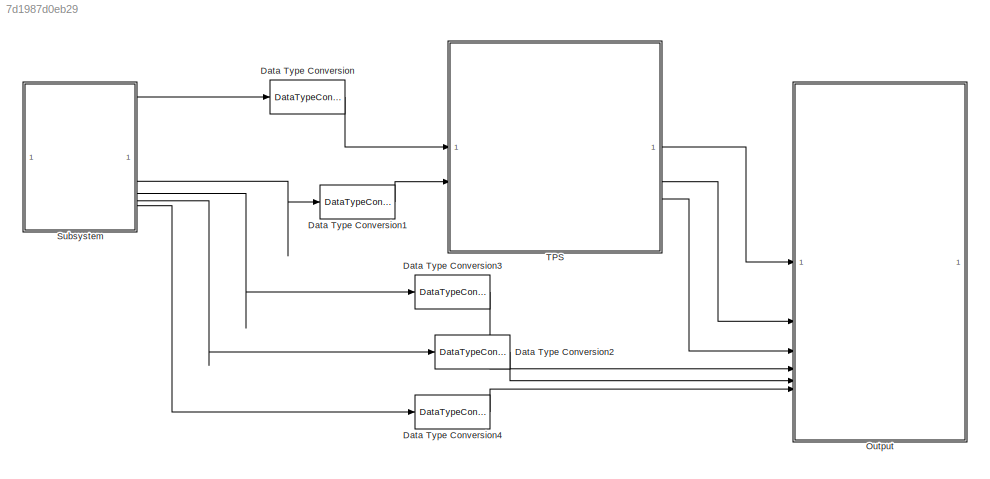
MODEL slx_7d1987d0eb29
KIND model
CONFIG AbsTol = auto
CONFIG EnableMultiTasking = off
CONFIG FixedStep = auto
CONFIG MaxStep = auto
CONFIG MinStep = auto
CONFIG RelTol = 1e-3
CONFIG SampleTimeConstraint = Unconstrained
CONFIG SolverName = VariableStepAuto
CONFIG StartTime = 0.0
CONFIG StopTime = 2
BLOCK [DataTypeConversion] Data Type Conversion
  OutDataTypeStr = single
  RndMeth = Floor
  SaturateOnIntegerOverflow = off
BLOCK [DataTypeConversion] Data Type Conversion1
  OutDataTypeStr = single
  RndMeth = Floor
  SaturateOnIntegerOverflow = off
BLOCK [DataTypeConversion] Data Type Conversion2
  OutDataTypeStr = boolean
  RndMeth = Floor
  SaturateOnIntegerOverflow = off
BLOCK [DataTypeConversion] Data Type Conversion3
  OutDataTypeStr = boolean
  RndMeth = Floor
  SaturateOnIntegerOverflow = off
BLOCK [DataTypeConversion] Data Type Conversion4
  OutDataTypeStr = boolean
  RndMeth = Floor
  SaturateOnIntegerOverflow = off
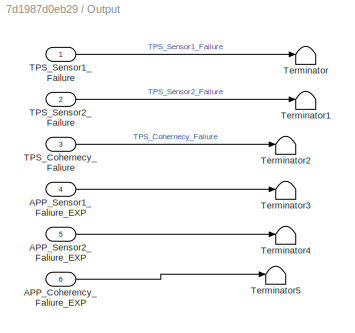
BLOCK [SubSystem] Output
BLOCK [Inport] Output/APP_Coherency_Faliure_EXP
  Port = 6
BLOCK [Inport] Output/APP_Sensor1_Faliure_EXP
  Port = 4
BLOCK [Inport] Output/APP_Sensor2_Faliure_EXP
  Port = 5
BLOCK [Inport] Output/TPS_Cohernecy_Faliure
  Port = 3
BLOCK [Inport] Output/TPS_Sensor1_Failure
BLOCK [Inport] Output/TPS_Sensor2_Failure
  Port = 2
BLOCK [Terminator] Output/Terminator
BLOCK [Terminator] Output/Terminator1
BLOCK [Terminator] Output/Terminator2
BLOCK [Terminator] Output/Terminator3
BLOCK [Terminator] Output/Terminator4
BLOCK [Terminator] Output/Terminator5
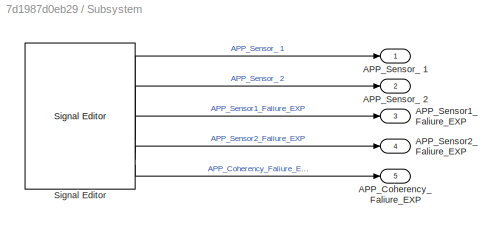
BLOCK [SubSystem] Subsystem
BLOCK [Outport] Subsystem/APP_Coherency_Faliure_EXP
  Port = 5
BLOCK [Outport] Subsystem/APP_Sensor1_Faliure_EXP
  Port = 3
BLOCK [Outport] Subsystem/APP_Sensor2_Faliure_EXP
  Port = 4
BLOCK [Outport] Subsystem/APP_Sensor_ 1
BLOCK [Outport] Subsystem/APP_Sensor_ 2
  Port = 2
BLOCK [Reference] Subsystem/Signal Editor  REF=SignalEditorBlockLib/Signal Editor
  LibrarySourceBlock = simulink/Sources/Signal Editor
  SourceBlock = SignalEditorBlockLib/Signal Editor
  SourceType = SignalEditor
  UserDataPersistent = on
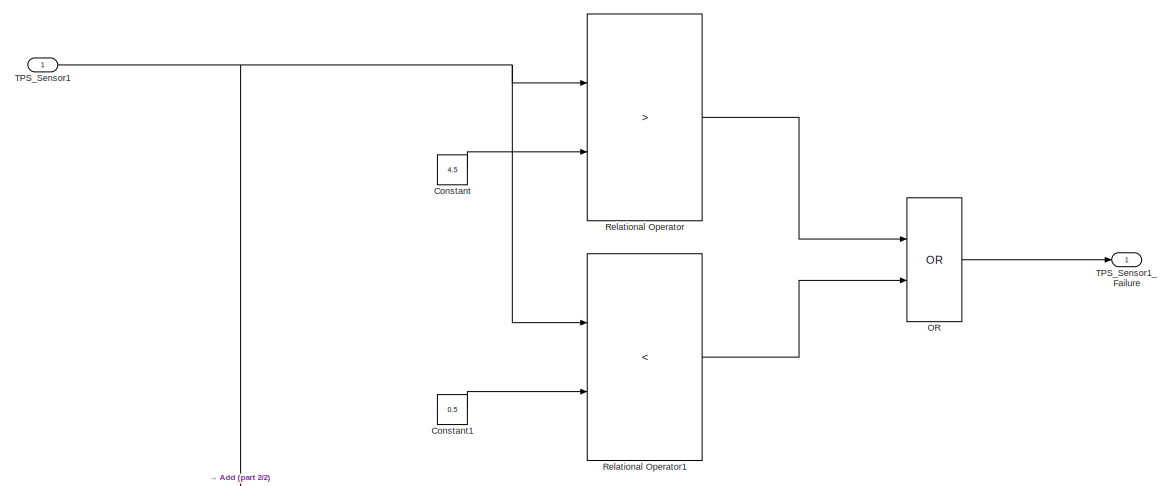
[diagram: TPS - part 1/2, full width, top band]
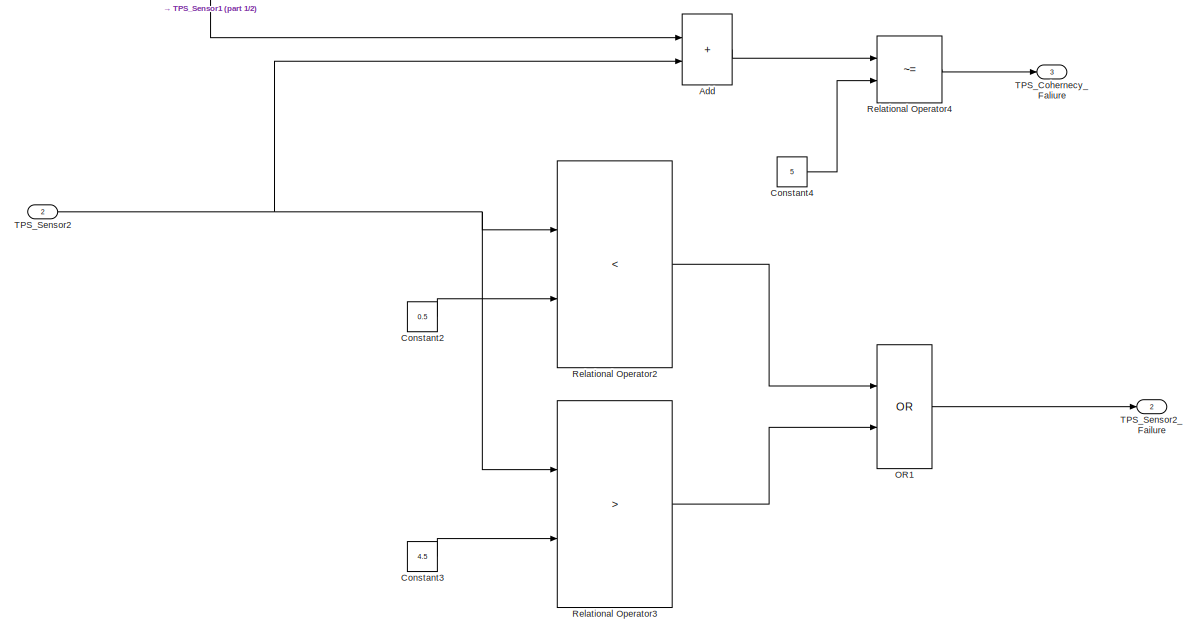
[diagram: TPS - part 2/2, full width, bottom band]
BLOCK [SubSystem] TPS
BLOCK [Sum] TPS/Add
  IconShape = rectangular
BLOCK [Constant] TPS/Constant
  Value = 4.5
BLOCK [Constant] TPS/Constant1
  Value = 0.5
BLOCK [Constant] TPS/Constant2
  Value = 0.5
BLOCK [Constant] TPS/Constant3
  Value = 4.5
BLOCK [Constant] TPS/Constant4
  Value = 5
BLOCK [Logic] TPS/OR
  AllPortsSameDT = off
  Operator = OR
  OutDataTypeStr = boolean
BLOCK [Logic] TPS/OR1
  AllPortsSameDT = off
  Operator = OR
  OutDataTypeStr = boolean
BLOCK [RelationalOperator] TPS/Relational Operator
  InputSameDT = off
  Operator = >
  OutDataTypeStr = boolean
  RndMeth = Simplest
BLOCK [RelationalOperator] TPS/Relational Operator1
  InputSameDT = off
  Operator = <
  OutDataTypeStr = boolean
  RndMeth = Simplest
BLOCK [RelationalOperator] TPS/Relational Operator2
  InputSameDT = off
  Operator = <
  OutDataTypeStr = boolean
  RndMeth = Simplest
BLOCK [RelationalOperator] TPS/Relational Operator3
  InputSameDT = off
  Operator = >
  OutDataTypeStr = boolean
  RndMeth = Simplest
BLOCK [RelationalOperator] TPS/Relational Operator4
  InputSameDT = off
  Operator = ~=
  OutDataTypeStr = boolean
  RndMeth = Simplest
BLOCK [Outport] TPS/TPS_Cohernecy_Faliure
  OutDataTypeStr = boolean
  Port = 3
BLOCK [Inport] TPS/TPS_Sensor1
  OutDataTypeStr = single
BLOCK [Outport] TPS/TPS_Sensor1_Failure
  OutDataTypeStr = boolean
BLOCK [Inport] TPS/TPS_Sensor2
  OutDataTypeStr = single
  Port = 2
BLOCK [Outport] TPS/TPS_Sensor2_Failure
  OutDataTypeStr = boolean
  Port = 2
LINE Data Type Conversion1:1 -> TPS:2
LINE Data Type Conversion2:1 -> Output:5
LINE Data Type Conversion3:1 -> Output:4
LINE Data Type Conversion4:1 -> Output:6
LINE Data Type Conversion:1 -> TPS:1
LINE Output/APP_Coherency_Faliure_EXP:1 -> Output/Terminator5:1
LINE Output/APP_Sensor1_Faliure_EXP:1 -> Output/Terminator3:1
LINE Output/APP_Sensor2_Faliure_EXP:1 -> Output/Terminator4:1
LINE Output/TPS_Cohernecy_Faliure:1 -> Output/Terminator2:1
LINE Output/TPS_Sensor1_Failure:1 -> Output/Terminator:1
LINE Output/TPS_Sensor2_Failure:1 -> Output/Terminator1:1
LINE Subsystem/Signal Editor:1 -> Subsystem/APP_Sensor_ 1:1
LINE Subsystem/Signal Editor:2 -> Subsystem/APP_Sensor_ 2:1
LINE Subsystem/Signal Editor:3 -> Subsystem/APP_Sensor1_Faliure_EXP:1
LINE Subsystem/Signal Editor:4 -> Subsystem/APP_Sensor2_Faliure_EXP:1
LINE Subsystem/Signal Editor:5 -> Subsystem/APP_Coherency_Faliure_EXP:1
LINE Subsystem:1 -> Data Type Conversion:1
LINE Subsystem:2 -> Data Type Conversion1:1
LINE Subsystem:3 -> Data Type Conversion3:1
LINE Subsystem:4 -> Data Type Conversion2:1
LINE Subsystem:5 -> Data Type Conversion4:1
LINE TPS/Add:1 -> TPS/Relational Operator4:1
LINE TPS/Constant1:1 -> TPS/Relational Operator1:2
LINE TPS/Constant2:1 -> TPS/Relational Operator2:2
LINE TPS/Constant3:1 -> TPS/Relational Operator3:2
LINE TPS/Constant4:1 -> TPS/Relational Operator4:2
LINE TPS/Constant:1 -> TPS/Relational Operator:2
LINE TPS/OR1:1 -> TPS/TPS_Sensor2_Failure:1
LINE TPS/OR:1 -> TPS/TPS_Sensor1_Failure:1
LINE TPS/Relational Operator1:1 -> TPS/OR:2
LINE TPS/Relational Operator2:1 -> TPS/OR1:1
LINE TPS/Relational Operator3:1 -> TPS/OR1:2
LINE TPS/Relational Operator4:1 -> TPS/TPS_Cohernecy_Faliure:1
LINE TPS/Relational Operator:1 -> TPS/OR:1
NET TPS/TPS_Sensor1:1 -> TPS/Add:1, TPS/Relational Operator1:1, TPS/Relational Operator:1
NET TPS/TPS_Sensor2:1 -> TPS/Add:2, TPS/Relational Operator2:1, TPS/Relational Operator3:1
LINE TPS:1 -> Output:1
LINE TPS:2 -> Output:2
LINE TPS:3 -> Output:3
note: NET lines group one-source signal fan-out (src -> all destinations, sorted); 1:1 wires keep LINE
